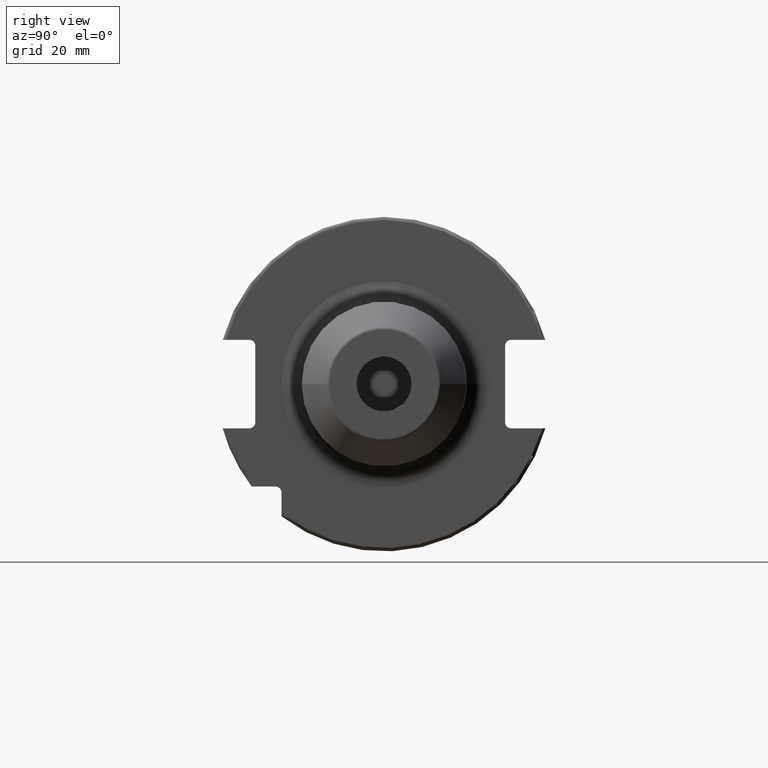
[diagram: clean part render]
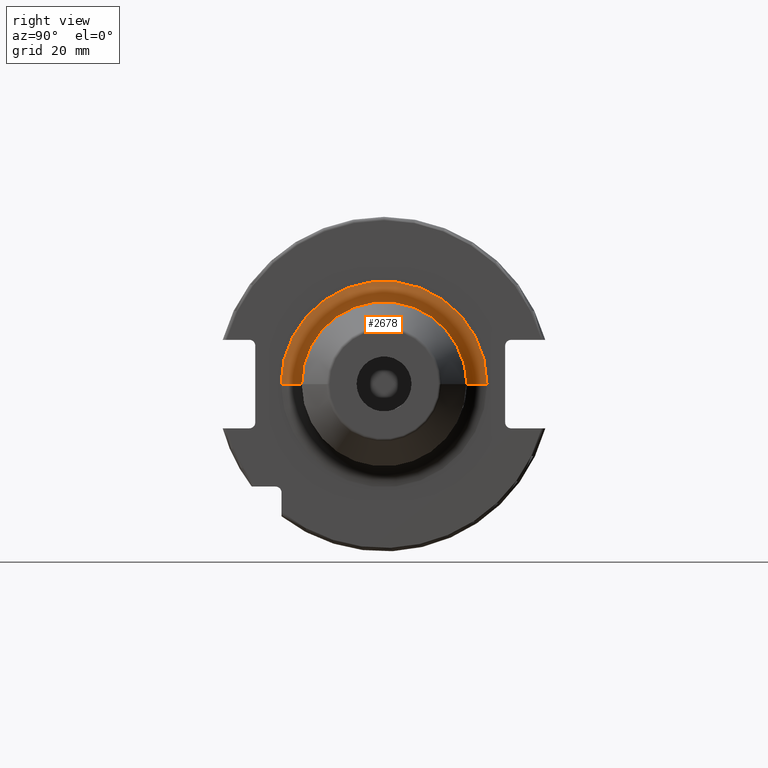
[diagram: same view with one face highlighted and labeled with its STEP entity id]
A machine part, right view. The second image highlights one B-rep face of the part: STEP entity #2678.
In plain terms, the highlighted toroidal blend (fillet) surface has major radius 30 mm and minor (blend) radius 6 mm.
Its self-contained STEP definition (entity closure, byte-faithful):
#177=CARTESIAN_POINT('',(1.905E1,0.E0,0.E0));
#178=DIRECTION('',(1.E0,0.E0,0.E0));
#179=DIRECTION('',(0.E0,1.E0,0.E0));
#180=AXIS2_PLACEMENT_3D('',#177,#178,#179);
#952=CARTESIAN_POINT('',(2.505E1,-3.E1,6.904199434388E-13));
#953=DIRECTION('',(0.E0,-2.301370899405E-14,-1.E0));
#954=DIRECTION('',(-1.E0,1.125025998287E-14,0.E0));
#955=AXIS2_PLACEMENT_3D('',#952,#953,#954);
#957=CARTESIAN_POINT('',(2.505E1,3.E1,-6.802891583391E-13));
#958=DIRECTION('',(0.E0,2.267543791623E-14,1.E0));
#959=DIRECTION('',(-1.E0,-1.065814103640E-14,0.E0));
#960=AXIS2_PLACEMENT_3D('',#957,#958,#959);
#990=CARTESIAN_POINT('',(2.505E1,0.E0,0.E0));
#991=DIRECTION('',(1.E0,0.E0,0.E0));
#992=DIRECTION('',(0.E0,1.E0,0.E0));
#993=AXIS2_PLACEMENT_3D('',#990,#991,#992);
#1635=CARTESIAN_POINT('',(1.905E1,-3.E1,1.929747179612E-14));
#1636=CARTESIAN_POINT('',(1.905E1,3.E1,-2.297141219356E-14));
#1637=VERTEX_POINT('',#1635);
#1638=VERTEX_POINT('',#1636);
#1639=CARTESIAN_POINT('',(2.505E1,-2.4E1,0.E0));
#1640=CARTESIAN_POINT('',(2.505E1,2.4E1,0.E0));
#1641=VERTEX_POINT('',#1639);
#1642=VERTEX_POINT('',#1640);
#2666=CARTESIAN_POINT('',(2.505E1,0.E0,0.E0));
#2667=DIRECTION('',(1.E0,0.E0,0.E0));
#2668=DIRECTION('',(0.E0,9.999794752457E-1,-6.406956165906E-3));
#2669=AXIS2_PLACEMENT_3D('',#2666,#2667,#2668);
#2670=TOROIDAL_SURFACE('',#2669,3.E1,6.E0);
#2671=ORIENTED_EDGE('',*,*,#1900,.F.);
#2672=ORIENTED_EDGE('',*,*,#2661,.T.);
#2674=ORIENTED_EDGE('',*,*,#2673,.T.);
#2675=ORIENTED_EDGE('',*,*,#2657,.F.);
#2676=EDGE_LOOP('',(#2671,#2672,#2674,#2675));
#2677=FACE_OUTER_BOUND('',#2676,.F.);
#2678=ADVANCED_FACE('',(#2677),#2670,.F.);
#181=CIRCLE('',#180,3.E1);
#956=CIRCLE('',#955,6.E0);
#961=CIRCLE('',#960,6.E0);
#994=CIRCLE('',#993,2.4E1);
#1900=EDGE_CURVE('',#1638,#1637,#181,.T.);
#2657=EDGE_CURVE('',#1637,#1641,#956,.T.);
#2661=EDGE_CURVE('',#1638,#1642,#961,.T.);
#2673=EDGE_CURVE('',#1642,#1641,#994,.T.);